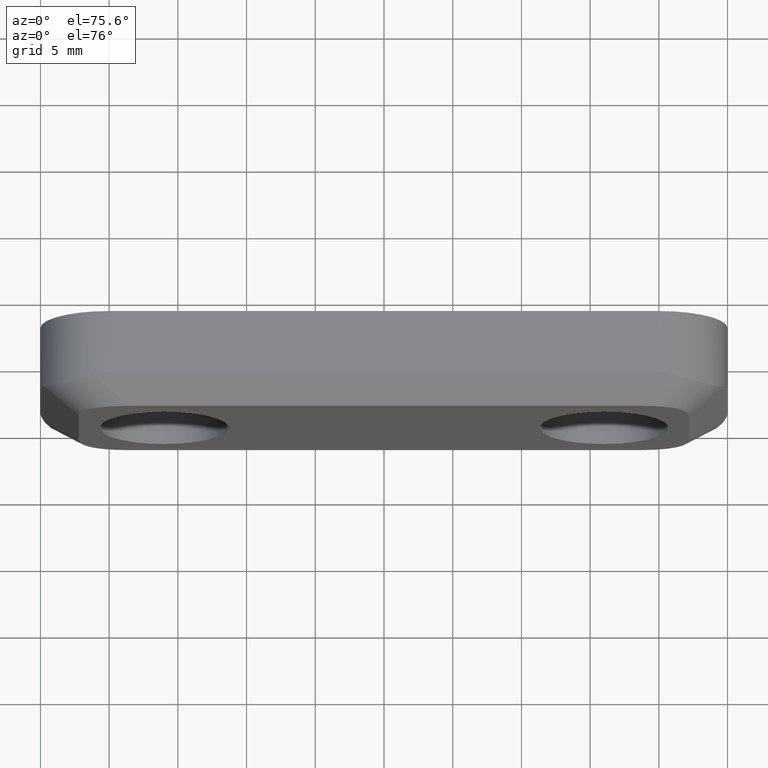
[diagram: clean part render]
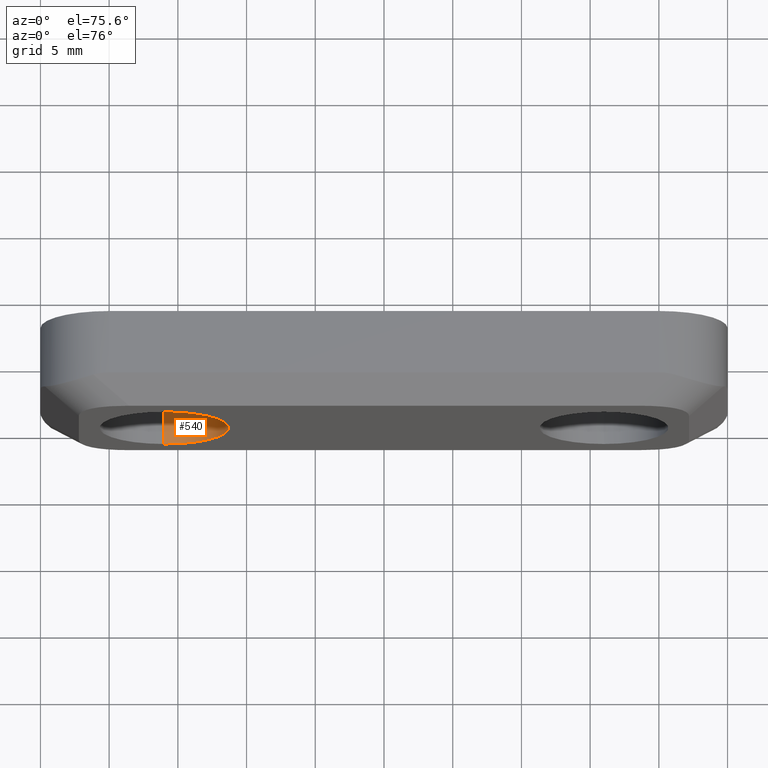
[diagram: same view with one face highlighted and labeled with its STEP entity id]
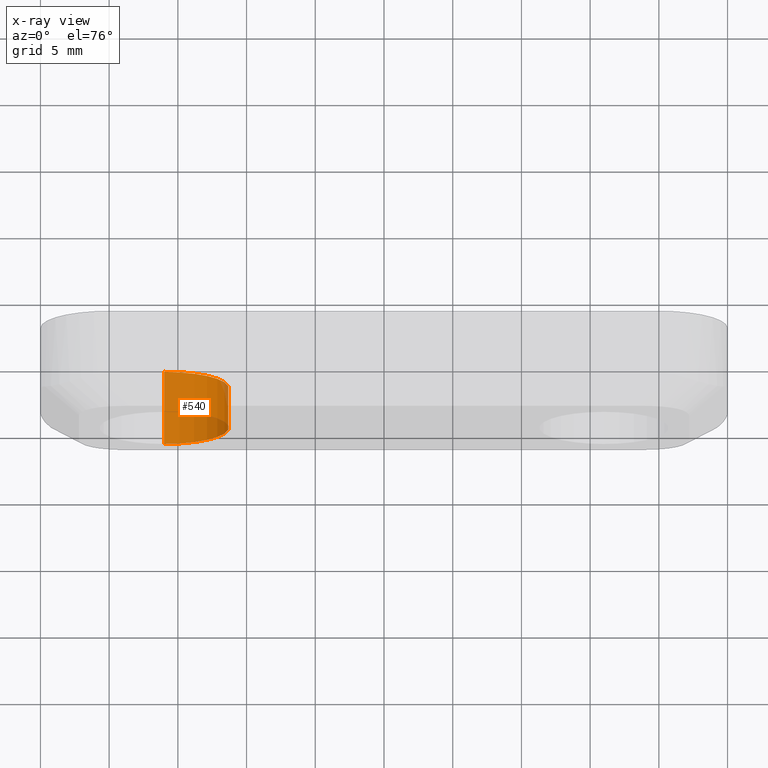
[diagram: x-ray of the same camera — body ghosted, the highlighted face saturated]
A machine part, auxiliary view. The second image highlights one B-rep face of the part: STEP entity #540.
The next image is the same camera in x-ray: the body ghosted, the highlighted face saturated — about 2% of this face is hidden behind the body in this view.
In plain terms, the highlighted cylindrical surface (partial cylindrical patch) has radius 4.7 mm, axis along (0, -1, 0).
Its self-contained STEP definition (entity closure, byte-faithful):
#18 = LINE ( 'NONE', #666, #620 ) ;
#48 = CARTESIAN_POINT ( 'NONE',  ( -16.00000000000000000, -3.600000000000000100, 0.0000000000000000000 ) ) ;
#94 = DIRECTION ( 'NONE',  ( 0.0000000000000000000, 1.000000000000000000, 0.0000000000000000000 ) ) ;
#101 = VERTEX_POINT ( 'NONE', #443 ) ;
#131 = DIRECTION ( 'NONE',  ( 0.0000000000000000000, -1.000000000000000000, 0.0000000000000000000 ) ) ;
#189 = CARTESIAN_POINT ( 'NONE',  ( -16.00000000000000000, 0.0000000000000000000, 0.0000000000000000000 ) ) ;
#254 = FACE_OUTER_BOUND ( 'NONE', #904, .T. ) ;
#290 = VERTEX_POINT ( 'NONE', #755 ) ;
#349 = EDGE_CURVE ( 'NONE', #451, #101, #424, .T. ) ;
#350 = DIRECTION ( 'NONE',  ( 0.0000000000000000000, -1.000000000000000000, 0.0000000000000000000 ) ) ;
#403 = DIRECTION ( 'NONE',  ( 0.0000000000000000000, 0.0000000000000000000, -1.000000000000000000 ) ) ;
#409 = EDGE_CURVE ( 'NONE', #290, #451, #994, .T. ) ;
#410 = CARTESIAN_POINT ( 'NONE',  ( -16.00000000000000000, -6.599999999999999600, 4.700000000000000200 ) ) ;
#415 = DIRECTION ( 'NONE',  ( 0.0000000000000000000, -1.000000000000000000, 0.0000000000000000000 ) ) ;
#423 = ORIENTED_EDGE ( 'NONE', *, *, #447, .F. ) ;
#424 = LINE ( 'NONE', #638, #615 ) ;
#439 = CYLINDRICAL_SURFACE ( 'NONE', #548, 4.700000000000000200 ) ;
#443 = CARTESIAN_POINT ( 'NONE',  ( -16.00000000000000000, -6.599999999999999600, -4.700000000000000200 ) ) ;
#447 = EDGE_CURVE ( 'NONE', #839, #101, #941, .T. ) ;
#451 = VERTEX_POINT ( 'NONE', #717 ) ;
#503 = DIRECTION ( 'NONE',  ( 0.0000000000000000000, 0.0000000000000000000, -1.000000000000000000 ) ) ;
#522 = ORIENTED_EDGE ( 'NONE', *, *, #409, .T. ) ;
#540 = ADVANCED_FACE ( 'NONE', ( #254 ), #439, .F. ) ;
#548 = AXIS2_PLACEMENT_3D ( 'NONE', #189, #350, #503 ) ;
#566 = AXIS2_PLACEMENT_3D ( 'NONE', #48, #94, #567 ) ;
#567 = DIRECTION ( 'NONE',  ( 0.0000000000000000000, 0.0000000000000000000, -1.000000000000000000 ) ) ;
#590 = EDGE_CURVE ( 'NONE', #290, #839, #18, .T. ) ;
#615 = VECTOR ( 'NONE', #415, 1000.000000000000000 ) ;
#620 = VECTOR ( 'NONE', #131, 1000.000000000000000 ) ;
#638 = CARTESIAN_POINT ( 'NONE',  ( -16.00000000000000000, 0.0000000000000000000, -4.700000000000000200 ) ) ;
#666 = CARTESIAN_POINT ( 'NONE',  ( -16.00000000000000000, 0.0000000000000000000, 4.700000000000000200 ) ) ;
#717 = CARTESIAN_POINT ( 'NONE',  ( -16.00000000000000000, -3.600000000000000100, -4.700000000000000200 ) ) ;
#723 = AXIS2_PLACEMENT_3D ( 'NONE', #865, #953, #403 ) ;
#755 = CARTESIAN_POINT ( 'NONE',  ( -16.00000000000000000, -3.600000000000000100, 4.700000000000000200 ) ) ;
#827 = ORIENTED_EDGE ( 'NONE', *, *, #590, .F. ) ;
#839 = VERTEX_POINT ( 'NONE', #410 ) ;
#846 = ORIENTED_EDGE ( 'NONE', *, *, #349, .T. ) ;
#865 = CARTESIAN_POINT ( 'NONE',  ( -16.00000000000000000, -6.599999999999999600, 0.0000000000000000000 ) ) ;
#904 = EDGE_LOOP ( 'NONE', ( #827, #522, #846, #423 ) ) ;
#941 = CIRCLE ( 'NONE', #723, 4.700000000000000200 ) ;
#953 = DIRECTION ( 'NONE',  ( 0.0000000000000000000, 1.000000000000000000, 0.0000000000000000000 ) ) ;
#994 = CIRCLE ( 'NONE', #566, 4.700000000000000200 ) ;